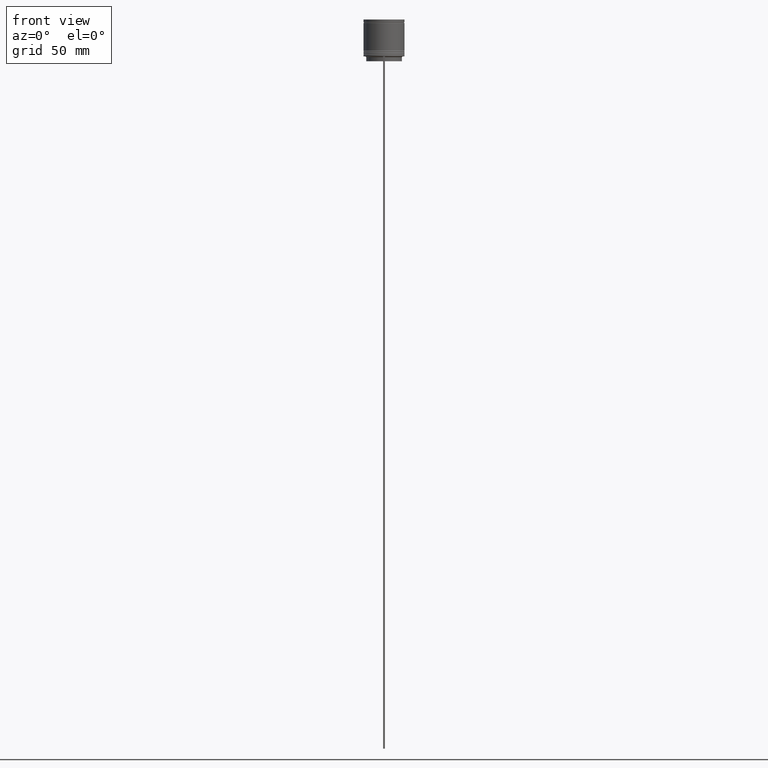
[diagram: clean part render]
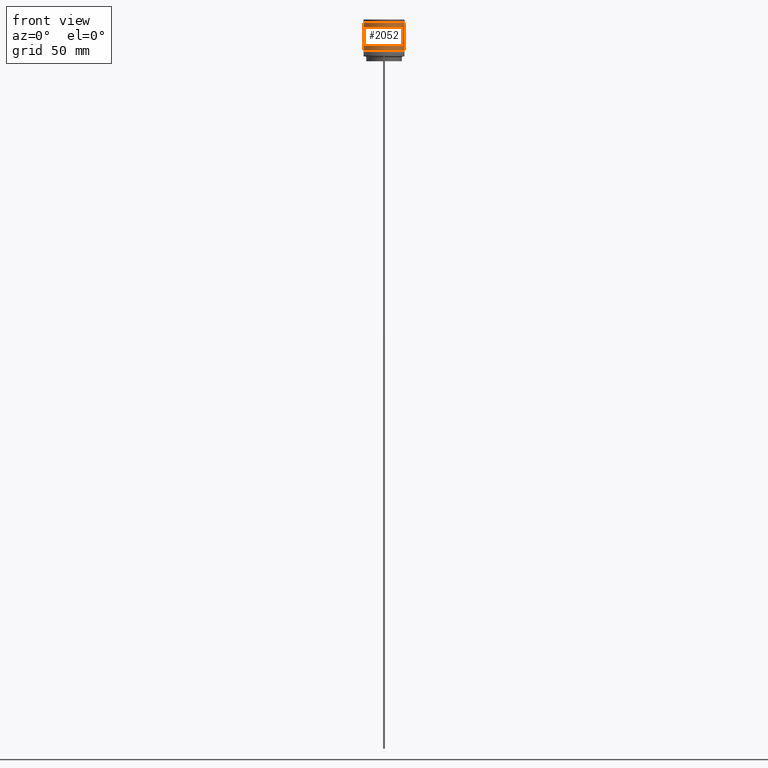
[diagram: same view with one face highlighted and labeled with its STEP entity id]
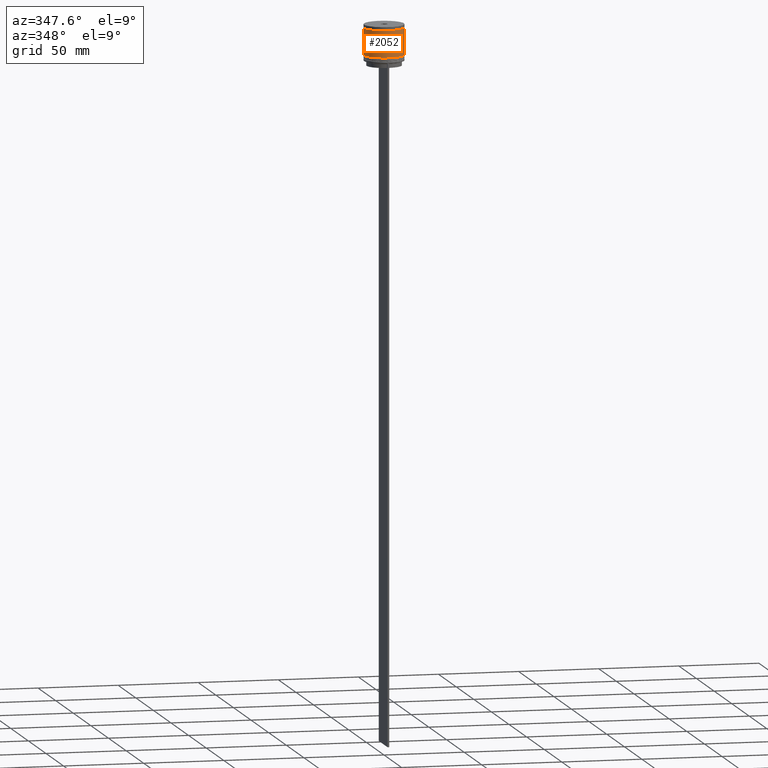
[diagram: same view with one face highlighted and labeled with its STEP entity id]
A machine part, front view. The second image highlights one B-rep face of the part: STEP entity #2052.
A second angle (auxiliary view) of the same face is appended — the face is thin or edge-on in the first view.
In plain terms, the highlighted cylindrical surface (edge-blend (fillet) strip) has radius 12.5 mm, axis along (-0, -0, 1).
Its self-contained STEP definition (entity closure, byte-faithful):
#43 = CARTESIAN_POINT ( 'NONE',  ( 12.50000000000000000, 0.000000000000000000, 0.000000000000000000 ) ) ;
#89 = DIRECTION ( 'NONE',  ( 1.000000000000000000, 0.000000000000000000, 0.000000000000000000 ) ) ;
#162 = CARTESIAN_POINT ( 'NONE',  ( 0.000000000000000000, 0.000000000000000000, 0.000000000000000000 ) ) ;
#195 = VERTEX_POINT ( 'NONE', #2058 ) ;
#241 = AXIS2_PLACEMENT_3D ( 'NONE', #716, #402, #89 ) ;
#310 = ORIENTED_EDGE ( 'NONE', *, *, #1480, .F. ) ;
#402 = DIRECTION ( 'NONE',  ( -0.000000000000000000, -0.000000000000000000, 1.000000000000000000 ) ) ;
#445 = EDGE_CURVE ( 'NONE', #195, #1534, #871, .T. ) ;
#495 = DIRECTION ( 'NONE',  ( 1.000000000000000000, 0.000000000000000000, 0.000000000000000000 ) ) ;
#595 = CARTESIAN_POINT ( 'NONE',  ( 0.000000000000000000, 0.000000000000000000, -19.00000000000000000 ) ) ;
#707 = CIRCLE ( 'NONE', #241, 12.49999999999999645 ) ;
#716 = CARTESIAN_POINT ( 'NONE',  ( 0.000000000000000000, 0.000000000000000000, -2.199999999999994404 ) ) ;
#808 = DIRECTION ( 'NONE',  ( -0.000000000000000000, -0.000000000000000000, 1.000000000000000000 ) ) ;
#867 = CARTESIAN_POINT ( 'NONE',  ( -12.49999999999999645, 1.530808498934191324E-15, -2.199999999999994404 ) ) ;
#871 = LINE ( 'NONE', #43, #1511 ) ;
#907 = LINE ( 'NONE', #1538, #1447 ) ;
#942 = ORIENTED_EDGE ( 'NONE', *, *, #445, .T. ) ;
#1128 = FACE_OUTER_BOUND ( 'NONE', #1396, .T. ) ;
#1140 = CARTESIAN_POINT ( 'NONE',  ( 12.49999999999999645, 0.000000000000000000, -2.199999999999994404 ) ) ;
#1234 = DIRECTION ( 'NONE',  ( -0.000000000000000000, -0.000000000000000000, 1.000000000000000000 ) ) ;
#1282 = CIRCLE ( 'NONE', #1551, 12.50000000000000178 ) ;
#1356 = DIRECTION ( 'NONE',  ( -0.000000000000000000, -0.000000000000000000, 1.000000000000000000 ) ) ;
#1380 = VERTEX_POINT ( 'NONE', #867 ) ;
#1396 = EDGE_LOOP ( 'NONE', ( #1835, #1922, #942, #310 ) ) ;
#1416 = EDGE_CURVE ( 'NONE', #1427, #1380, #907, .T. ) ;
#1427 = VERTEX_POINT ( 'NONE', #1505 ) ;
#1447 = VECTOR ( 'NONE', #1356, 1000.000000000000000 ) ;
#1448 = DIRECTION ( 'NONE',  ( 1.000000000000000000, 0.000000000000000000, 0.000000000000000000 ) ) ;
#1480 = EDGE_CURVE ( 'NONE', #1380, #1534, #707, .T. ) ;
#1493 = DIRECTION ( 'NONE',  ( -0.000000000000000000, -0.000000000000000000, 1.000000000000000000 ) ) ;
#1502 = AXIS2_PLACEMENT_3D ( 'NONE', #162, #808, #1448 ) ;
#1505 = CARTESIAN_POINT ( 'NONE',  ( -12.50000000000000355, 1.530808498934191916E-15, -19.00000000000000000 ) ) ;
#1511 = VECTOR ( 'NONE', #1493, 1000.000000000000000 ) ;
#1534 = VERTEX_POINT ( 'NONE', #1140 ) ;
#1538 = CARTESIAN_POINT ( 'NONE',  ( -12.50000000000000000, 1.530808498934191521E-15, 0.000000000000000000 ) ) ;
#1551 = AXIS2_PLACEMENT_3D ( 'NONE', #595, #1234, #495 ) ;
#1611 = CYLINDRICAL_SURFACE ( 'NONE', #1502, 12.50000000000000000 ) ;
#1668 = EDGE_CURVE ( 'NONE', #1427, #195, #1282, .T. ) ;
#1835 = ORIENTED_EDGE ( 'NONE', *, *, #1416, .F. ) ;
#1922 = ORIENTED_EDGE ( 'NONE', *, *, #1668, .T. ) ;
#2052 = ADVANCED_FACE ( 'NONE', ( #1128 ), #1611, .T. ) ;
#2058 = CARTESIAN_POINT ( 'NONE',  ( 12.50000000000000178, 0.000000000000000000, -19.00000000000000000 ) ) ;